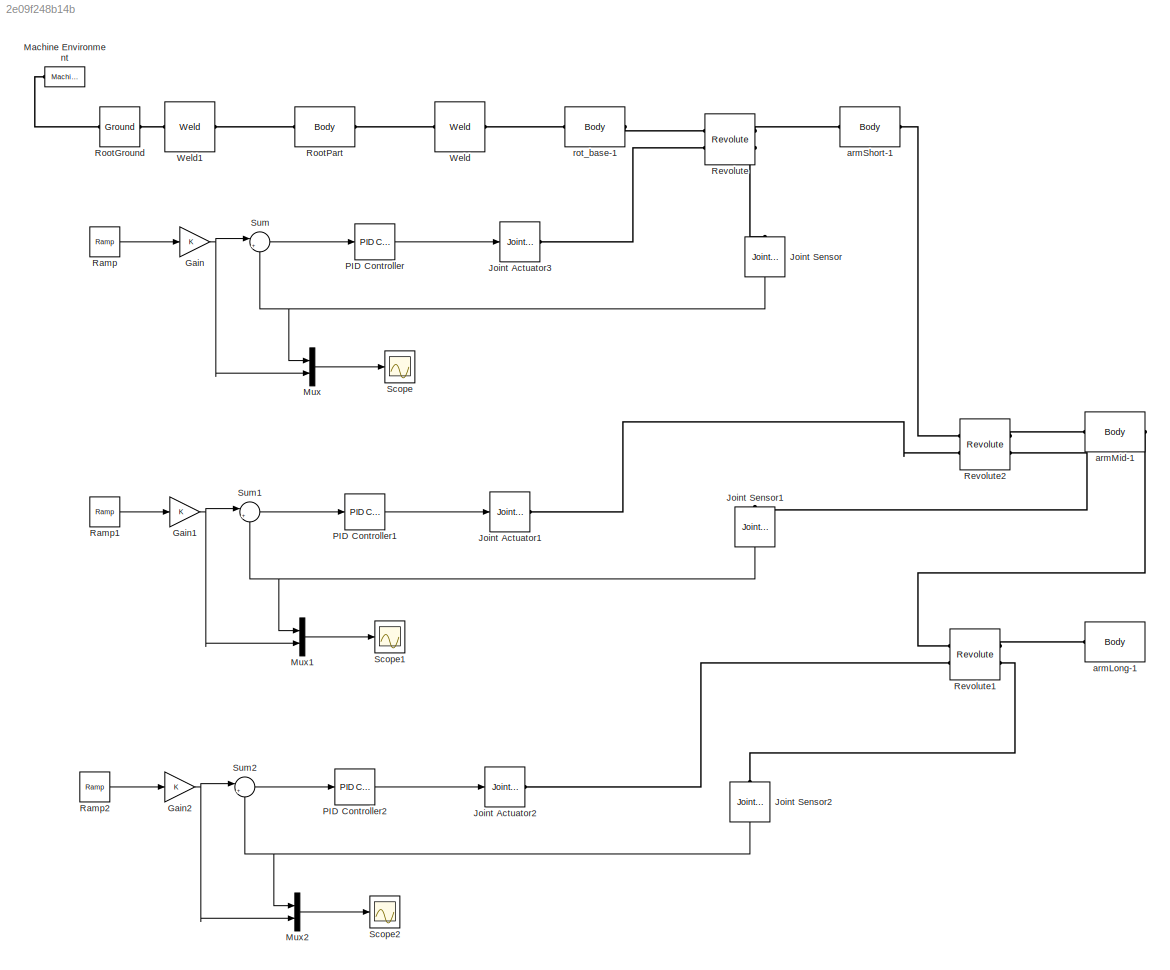
MODEL slx_2e09f248b14b
KIND model
BLOCK [Gain] Gain
  OutDataTypeStr = Inherit: Inherit via internal rule
  ParamDataTypeStr = Inherit: Inherit via internal rule
  SaturateOnIntegerOverflow = off
BLOCK [Gain] Gain1
  OutDataTypeStr = Inherit: Inherit via internal rule
  ParamDataTypeStr = Inherit: Inherit via internal rule
  SaturateOnIntegerOverflow = off
BLOCK [Gain] Gain2
  OutDataTypeStr = Inherit: Inherit via internal rule
  ParamDataTypeStr = Inherit: Inherit via internal rule
  SaturateOnIntegerOverflow = off
BLOCK [Reference] Joint Actuator1  REF=mblibv1/Sensors & 
Actuators/Joint Actuator
  AccelerationUnits = m/s^2
  ActiveIO = on
  ActuationStyle = Force
  AngleUnits = deg
  ArcAccelerationUnits = deg/s^2
  ArcVelocityUnits = deg/s
  ClassName = JointActuator
  CoordPositionUnits = m
  DialogClass = MechanicalActuatorBlock
  ForceUnits = N
  PhysicalDomain = Mechanical
  PortType = blob
  Ports = [1, 0, 0, 0, 0, 0, 1]
  Primitive = R1
  ReferenceFrame = Absolute (World)
  SourceBlock = mblibv1/Sensors & \nActuators/Joint Actuator
  SourceType = Joint Actuator
  TorqueUnits = N*m
  UpdateFromCAD = off
  VelocityUnits = m/s
  Width = 1
BLOCK [Reference] Joint Actuator2  REF=mblibv1/Sensors & 
Actuators/Joint Actuator
  AccelerationUnits = m/s^2
  ActiveIO = on
  ActuationStyle = Force
  AngleUnits = deg
  ArcAccelerationUnits = deg/s^2
  ArcVelocityUnits = deg/s
  ClassName = JointActuator
  CoordPositionUnits = m
  DialogClass = MechanicalActuatorBlock
  ForceUnits = N
  PhysicalDomain = Mechanical
  PortType = blob
  Ports = [1, 0, 0, 0, 0, 0, 1]
  Primitive = R1
  ReferenceFrame = Absolute (World)
  SourceBlock = mblibv1/Sensors & \nActuators/Joint Actuator
  SourceType = Joint Actuator
  TorqueUnits = N*m
  UpdateFromCAD = off
  VelocityUnits = m/s
  Width = 1
BLOCK [Reference] Joint Actuator3  REF=mblibv1/Sensors & 
Actuators/Joint Actuator
  AccelerationUnits = m/s^2
  ActiveIO = on
  ActuationStyle = Force
  AngleUnits = deg
  ArcAccelerationUnits = deg/s^2
  ArcVelocityUnits = deg/s
  ClassName = JointActuator
  CoordPositionUnits = m
  DialogClass = MechanicalActuatorBlock
  ForceUnits = N
  PhysicalDomain = Mechanical
  PortType = blob
  Ports = [1, 0, 0, 0, 0, 0, 1]
  Primitive = R1
  ReferenceFrame = Absolute (World)
  SourceBlock = mblibv1/Sensors & \nActuators/Joint Actuator
  SourceType = Joint Actuator
  TorqueUnits = N*m
  UpdateFromCAD = off
  VelocityUnits = m/s
  Width = 1
BLOCK [Reference] Joint Sensor  REF=mblibv1/Sensors & 
Actuators/Joint Sensor
  Acceleration = off
  AccelerationUnits = m/s^2
  ActiveIO = on
  Angle = on
  AngleUnits = deg
  ArcAcceleration = off
  ArcAccelerationUnits = deg/s^2
  ArcVelocity = off
  ArcVelocityUnits = deg/s
  ClassName = JointSensor
  CoordPosition = on
  CoordPositionUnits = m
  DialogClass = MechanicalSensorBlock
  Force = off
  ForceUnits = N
  Muxed = on
  OutputVector = [1]
  PhysicalDomain = Mechanical
  PortType = blob
  Ports = [0, 1, 0, 0, 0, 1]
  Pose = off
  Primitive = R1
  Quaternion = on
  QuaternionDDT = off
  QuaternionDT = off
  QuaternionUnits = off
  ReactionForce = off
  ReactionForceUnits = N
  ReactionMoment = off
  ReactionMomentUnits = N*m
  ReactionReferenceFrame = Absolute (World)
  ReactionSensedSide = Base
  ReferenceFrame = Absolute (World)
  SourceBlock = mblibv1/Sensors & \nActuators/Joint Sensor
  SourceType = Joint Sensor
  Torque = off
  TorqueUnits = N*m
  UpdateFromCAD = off
  Velocity = off
  VelocityUnits = m/s
  Width = 1
BLOCK [Reference] Joint Sensor1  REF=mblibv1/Sensors & 
Actuators/Joint Sensor
  Acceleration = off
  AccelerationUnits = m/s^2
  ActiveIO = on
  Angle = on
  AngleUnits = deg
  ArcAcceleration = off
  ArcAccelerationUnits = deg/s^2
  ArcVelocity = off
  ArcVelocityUnits = deg/s
  ClassName = JointSensor
  CoordPosition = on
  CoordPositionUnits = m
  DialogClass = MechanicalSensorBlock
  Force = off
  ForceUnits = N
  Muxed = on
  OutputVector = [1]
  PhysicalDomain = Mechanical
  PortType = blob
  Ports = [0, 1, 0, 0, 0, 1]
  Pose = off
  Primitive = R1
  Quaternion = on
  QuaternionDDT = off
  QuaternionDT = off
  QuaternionUnits = off
  ReactionForce = off
  ReactionForceUnits = N
  ReactionMoment = off
  ReactionMomentUnits = N*m
  ReactionReferenceFrame = Absolute (World)
  ReactionSensedSide = Base
  ReferenceFrame = Absolute (World)
  SourceBlock = mblibv1/Sensors & \nActuators/Joint Sensor
  SourceType = Joint Sensor
  Torque = off
  TorqueUnits = N*m
  UpdateFromCAD = off
  Velocity = off
  VelocityUnits = m/s
  Width = 1
BLOCK [Reference] Joint Sensor2  REF=mblibv1/Sensors & 
Actuators/Joint Sensor
  Acceleration = off
  AccelerationUnits = m/s^2
  ActiveIO = on
  Angle = on
  AngleUnits = deg
  ArcAcceleration = off
  ArcAccelerationUnits = deg/s^2
  ArcVelocity = off
  ArcVelocityUnits = deg/s
  ClassName = JointSensor
  CoordPosition = on
  CoordPositionUnits = m
  DialogClass = MechanicalSensorBlock
  Force = off
  ForceUnits = N
  Muxed = on
  OutputVector = [1]
  PhysicalDomain = Mechanical
  PortType = blob
  Ports = [0, 1, 0, 0, 0, 1]
  Pose = off
  Primitive = R1
  Quaternion = on
  QuaternionDDT = off
  QuaternionDT = off
  QuaternionUnits = off
  ReactionForce = off
  ReactionForceUnits = N
  ReactionMoment = off
  ReactionMomentUnits = N*m
  ReactionReferenceFrame = Absolute (World)
  ReactionSensedSide = Base
  ReferenceFrame = Absolute (World)
  SourceBlock = mblibv1/Sensors & \nActuators/Joint Sensor
  SourceType = Joint Sensor
  Torque = off
  TorqueUnits = N*m
  UpdateFromCAD = off
  Velocity = off
  VelocityUnits = m/s
  Width = 1
BLOCK [Reference] Machine Environment  REF=mblibv1/Bodies/Machine
Environment
  AnalysisType = Forward dynamics
  AngularAssemblyTolerance = 1e-3
  AngularAssemblyToleranceUnits = rad
  BodyColorSelMode = Use model default
  BodyVisualizationType = Use model default body geometries
  ClassName = Environment
  ConstraintAbsTolerance = 1e-4
  ConstraintRelTolerance = 1e-4
  ConstraintSolverType = Stabilizing
  DefaultBodyColor = [1 0 0]
  DialogTemplateClass = MECH.MachineEnvironment
  Dimensionality = Auto-detect
  Gravity = [0 -9.81 0]
  GravityAsSignal = off
  GravityUnits = m/s^2
  LinearAssemblyTolerance = 1e-3
  LinearAssemblyToleranceUnits = m
  PerturbationSize = 1e-5
  PhysicalDomain = Mechanical
  PortType = env
  Ports = [0, 0, 0, 0, 0, 0, 1]
  RedundancyAnalysisTolerance = 1e-14
  RedundancyAnalysisToleranceType = Automatically select tolerance
  SourceBlock = mblibv1/Bodies/Machine\nEnvironment
  SourceType = Machine Environment
  StatePerturbationType = Fixed
  SyncWhenCopied = off
  UseRobustSingularityHandling = off
  VisualizeMachine = on
BLOCK [Mux] Mux
  DisplayOption = bar
  Inputs = 2
  Ports = [2, 1]
BLOCK [Mux] Mux1
  DisplayOption = bar
  Inputs = 2
  Ports = [2, 1]
BLOCK [Mux] Mux2
  DisplayOption = bar
  Inputs = 2
  Ports = [2, 1]
BLOCK [Reference] PID Controller  REF=simulink/Continuous/PID Controller
  AntiWindupMode = none
  Controller = PID
  D = 4.58263282324642
  DOutDataTypeStr = Inherit: Inherit via internal rule
  DOutMax = []
  DOutMin = []
  DParamDataTypeStr = Inherit: Inherit via internal rule
  DParamMax = []
  DParamMin = []
  DifferentiatorICPrevScaledInput = 0
  DifferentiatorOutDataTypeStr = Inherit: Inherit via internal rule
  DifferentiatorOutMax = []
  DifferentiatorOutMin = []
  ExternalReset = none
  FilterContinuousStateAttributes = ''
  FilterMethod = Forward Euler
  FilterOutDataTypeStr = Inherit: Inherit via internal rule
  FilterOutMax = []
  FilterOutMin = []
  FilterRTWStateStorageClass = Auto
  FilterStateMustResolveToSignalObject = off
  Form = Parallel
  I = 75.5250186640571
  IOutDataTypeStr = Inherit: Inherit via internal rule
  IOutMax = []
  IOutMin = []
  IParamDataTypeStr = Inherit: Inherit via internal rule
  IParamMax = []
  IParamMin = []
  IgnoreLimit = off
  InitialConditionForFilter = 0
  InitialConditionForIntegrator = 0
  InitialConditionSource = internal
  IntegratorContinuousStateAttributes = ''
  IntegratorMethod = Forward Euler
  IntegratorOutDataTypeStr = Inherit: Inherit via internal rule
  IntegratorOutMax = []
  IntegratorOutMin = []
  IntegratorRTWStateStorageClass = Auto
  IntegratorStateMustResolveToSignalObject = off
  Kb = 1
  KbOutDataTypeStr = Inherit: Inherit via internal rule
  KbOutMax = []
  KbOutMin = []
  KbParamDataTypeStr = Inherit: Inherit via internal rule
  KbParamMax = []
  KbParamMin = []
  Kt = 1
  KtOutDataTypeStr = Inherit: Inherit via internal rule
  KtOutMax = []
  KtOutMin = []
  KtParamDataTypeStr = Inherit: Inherit via internal rule
  KtParamMax = []
  KtParamMin = []
  LimitOutput = off
  LinearizeAsGain = on
  LockScale = off
  LowerSaturationLimit = -inf
  N = 6677.79407872841
  NOutDataTypeStr = Inherit: Inherit via internal rule
  NOutMax = []
  NOutMin = []
  NParamDataTypeStr = Inherit: Inherit via internal rule
  NParamMax = []
  NParamMin = []
  P = 150.056536397239
  POutDataTypeStr = Inherit: Inherit via internal rule
  POutMax = []
  POutMin = []
  PParamDataTypeStr = Inherit: Inherit via internal rule
  PParamMax = []
  PParamMin = []
  Ports = [1, 1]
  RndMeth = Floor
  SampleTime = -1
  SaturateOnIntegerOverflow = off
  SaturationOutDataTypeStr = Inherit: Same as input
  SaturationOutMax = []
  SaturationOutMin = []
  SourceBlock = simulink/Continuous/PID Controller
  SourceType = PID 1dof
  SumAccumDataTypeStr = Inherit: Inherit via internal rule
  SumDAccumDataTypeStr = Inherit: Inherit via internal rule
  SumDOutDataTypeStr = Inherit: Inherit via internal rule
  SumDOutMax = []
  SumDOutMin = []
  SumI1AccumDataTypeStr = Inherit: Inherit via internal rule
  SumI1OutDataTypeStr = Inherit: Inherit via internal rule
  SumI1OutMax = []
  SumI1OutMin = []
  SumI2AccumDataTypeStr = Inherit: Inherit via internal rule
  SumI2OutDataTypeStr = Inherit: Inherit via internal rule
  SumI2OutMax = []
  SumI2OutMin = []
  SumI3AccumDataTypeStr = Inherit: Inherit via internal rule
  SumI3OutDataTypeStr = Inherit: Inherit via internal rule
  SumI3OutMax = []
  SumI3OutMin = []
  SumOutDataTypeStr = Inherit: Inherit via internal rule
  SumOutMax = []
  SumOutMin = []
  TimeDomain = Continuous-time
  TrackingMode = off
  UpperSaturationLimit = inf
  UseFilter = on
  ZeroCross = on
BLOCK [Reference] PID Controller1  REF=simulink/Continuous/PID Controller
  AntiWindupMode = none
  Controller = PID
  D = 0
  DOutDataTypeStr = Inherit: Inherit via internal rule
  DOutMax = []
  DOutMin = []
  DParamDataTypeStr = Inherit: Inherit via internal rule
  DParamMax = []
  DParamMin = []
  DifferentiatorICPrevScaledInput = 0
  DifferentiatorOutDataTypeStr = Inherit: Inherit via internal rule
  DifferentiatorOutMax = []
  DifferentiatorOutMin = []
  ExternalReset = none
  FilterContinuousStateAttributes = ''
  FilterMethod = Forward Euler
  FilterOutDataTypeStr = Inherit: Inherit via internal rule
  FilterOutMax = []
  FilterOutMin = []
  FilterRTWStateStorageClass = Auto
  FilterStateMustResolveToSignalObject = off
  Form = Parallel
  I = 317.684494192257
  IOutDataTypeStr = Inherit: Inherit via internal rule
  IOutMax = []
  IOutMin = []
  IParamDataTypeStr = Inherit: Inherit via internal rule
  IParamMax = []
  IParamMin = []
  IgnoreLimit = off
  InitialConditionForFilter = 0
  InitialConditionForIntegrator = 0
  InitialConditionSource = internal
  IntegratorContinuousStateAttributes = ''
  IntegratorMethod = Forward Euler
  IntegratorOutDataTypeStr = Inherit: Inherit via internal rule
  IntegratorOutMax = []
  IntegratorOutMin = []
  IntegratorRTWStateStorageClass = Auto
  IntegratorStateMustResolveToSignalObject = off
  Kb = 1
  KbOutDataTypeStr = Inherit: Inherit via internal rule
  KbOutMax = []
  KbOutMin = []
  KbParamDataTypeStr = Inherit: Inherit via internal rule
  KbParamMax = []
  KbParamMin = []
  Kt = 1
  KtOutDataTypeStr = Inherit: Inherit via internal rule
  KtOutMax = []
  KtOutMin = []
  KtParamDataTypeStr = Inherit: Inherit via internal rule
  KtParamMax = []
  KtParamMin = []
  LimitOutput = off
  LinearizeAsGain = on
  LockScale = off
  LowerSaturationLimit = -inf
  N = 146.896368307369
  NOutDataTypeStr = Inherit: Inherit via internal rule
  NOutMax = []
  NOutMin = []
  NParamDataTypeStr = Inherit: Inherit via internal rule
  NParamMax = []
  NParamMin = []
  P = 246.281051905246
  POutDataTypeStr = Inherit: Inherit via internal rule
  POutMax = []
  POutMin = []
  PParamDataTypeStr = Inherit: Inherit via internal rule
  PParamMax = []
  PParamMin = []
  Ports = [1, 1]
  RndMeth = Floor
  SampleTime = -1
  SaturateOnIntegerOverflow = off
  SaturationOutDataTypeStr = Inherit: Same as input
  SaturationOutMax = []
  SaturationOutMin = []
  SourceBlock = simulink/Continuous/PID Controller
  SourceType = PID 1dof
  SumAccumDataTypeStr = Inherit: Inherit via internal rule
  SumDAccumDataTypeStr = Inherit: Inherit via internal rule
  SumDOutDataTypeStr = Inherit: Inherit via internal rule
  SumDOutMax = []
  SumDOutMin = []
  SumI1AccumDataTypeStr = Inherit: Inherit via internal rule
  SumI1OutDataTypeStr = Inherit: Inherit via internal rule
  SumI1OutMax = []
  SumI1OutMin = []
  SumI2AccumDataTypeStr = Inherit: Inherit via internal rule
  SumI2OutDataTypeStr = Inherit: Inherit via internal rule
  SumI2OutMax = []
  SumI2OutMin = []
  SumI3AccumDataTypeStr = Inherit: Inherit via internal rule
  SumI3OutDataTypeStr = Inherit: Inherit via internal rule
  SumI3OutMax = []
  SumI3OutMin = []
  SumOutDataTypeStr = Inherit: Inherit via internal rule
  SumOutMax = []
  SumOutMin = []
  TimeDomain = Continuous-time
  TrackingMode = off
  UpperSaturationLimit = inf
  UseFilter = on
  ZeroCross = on
BLOCK [Reference] PID Controller2  REF=simulink/Continuous/PID Controller
  AntiWindupMode = none
  Controller = PID
  D = 0.933836484922375
  DOutDataTypeStr = Inherit: Inherit via internal rule
  DOutMax = []
  DOutMin = []
  DParamDataTypeStr = Inherit: Inherit via internal rule
  DParamMax = []
  DParamMin = []
  DifferentiatorICPrevScaledInput = 0
  DifferentiatorOutDataTypeStr = Inherit: Inherit via internal rule
  DifferentiatorOutMax = []
  DifferentiatorOutMin = []
  ExternalReset = none
  FilterContinuousStateAttributes = ''
  FilterMethod = Forward Euler
  FilterOutDataTypeStr = Inherit: Inherit via internal rule
  FilterOutMax = []
  FilterOutMin = []
  FilterRTWStateStorageClass = Auto
  FilterStateMustResolveToSignalObject = off
  Form = Parallel
  I = 1353.80517771382
  IOutDataTypeStr = Inherit: Inherit via internal rule
  IOutMax = []
  IOutMin = []
  IParamDataTypeStr = Inherit: Inherit via internal rule
  IParamMax = []
  IParamMin = []
  IgnoreLimit = off
  InitialConditionForFilter = 0
  InitialConditionForIntegrator = 0
  InitialConditionSource = internal
  IntegratorContinuousStateAttributes = ''
  IntegratorMethod = Forward Euler
  IntegratorOutDataTypeStr = Inherit: Inherit via internal rule
  IntegratorOutMax = []
  IntegratorOutMin = []
  IntegratorRTWStateStorageClass = Auto
  IntegratorStateMustResolveToSignalObject = off
  Kb = 1
  KbOutDataTypeStr = Inherit: Inherit via internal rule
  KbOutMax = []
  KbOutMin = []
  KbParamDataTypeStr = Inherit: Inherit via internal rule
  KbParamMax = []
  KbParamMin = []
  Kt = 1
  KtOutDataTypeStr = Inherit: Inherit via internal rule
  KtOutMax = []
  KtOutMin = []
  KtParamDataTypeStr = Inherit: Inherit via internal rule
  KtParamMax = []
  KtParamMin = []
  LimitOutput = off
  LinearizeAsGain = on
  LockScale = off
  LowerSaturationLimit = -inf
  N = 858.708033042236
  NOutDataTypeStr = Inherit: Inherit via internal rule
  NOutMax = []
  NOutMin = []
  NParamDataTypeStr = Inherit: Inherit via internal rule
  NParamMax = []
  NParamMin = []
  P = 261.216911861667
  POutDataTypeStr = Inherit: Inherit via internal rule
  POutMax = []
  POutMin = []
  PParamDataTypeStr = Inherit: Inherit via internal rule
  PParamMax = []
  PParamMin = []
  Ports = [1, 1]
  RndMeth = Floor
  SampleTime = -1
  SaturateOnIntegerOverflow = off
  SaturationOutDataTypeStr = Inherit: Same as input
  SaturationOutMax = []
  SaturationOutMin = []
  SourceBlock = simulink/Continuous/PID Controller
  SourceType = PID 1dof
  SumAccumDataTypeStr = Inherit: Inherit via internal rule
  SumDAccumDataTypeStr = Inherit: Inherit via internal rule
  SumDOutDataTypeStr = Inherit: Inherit via internal rule
  SumDOutMax = []
  SumDOutMin = []
  SumI1AccumDataTypeStr = Inherit: Inherit via internal rule
  SumI1OutDataTypeStr = Inherit: Inherit via internal rule
  SumI1OutMax = []
  SumI1OutMin = []
  SumI2AccumDataTypeStr = Inherit: Inherit via internal rule
  SumI2OutDataTypeStr = Inherit: Inherit via internal rule
  SumI2OutMax = []
  SumI2OutMin = []
  SumI3AccumDataTypeStr = Inherit: Inherit via internal rule
  SumI3OutDataTypeStr = Inherit: Inherit via internal rule
  SumI3OutMax = []
  SumI3OutMin = []
  SumOutDataTypeStr = Inherit: Inherit via internal rule
  SumOutMax = []
  SumOutMin = []
  TimeDomain = Continuous-time
  TrackingMode = off
  UpperSaturationLimit = inf
  UseFilter = on
  ZeroCross = on
BLOCK [Reference] Ramp  REF=simulink/Sources/Ramp
  Ports = [0, 1]
  SourceBlock = simulink/Sources/Ramp
  SourceType = Ramp
  VectorParams1D = on
  X0 = 0
  slope = 10
  start = 0
BLOCK [Reference] Ramp1  REF=simulink/Sources/Ramp
  Ports = [0, 1]
  SourceBlock = simulink/Sources/Ramp
  SourceType = Ramp
  VectorParams1D = on
  X0 = 0
  slope = 10
  start = 0
BLOCK [Reference] Ramp2  REF=simulink/Sources/Ramp
  Ports = [0, 1]
  SourceBlock = simulink/Sources/Ramp
  SourceType = Ramp
  VectorParams1D = on
  X0 = 0
  slope = 10
  start = 0
BLOCK [Reference] Revolute  REF=mblibv1/Joints/Revolute
  ClassName = Joint
  CutJoint = off
  DialogClass = JointBlock
  LConnTagsString = __newl0|SA1
  MarkAsCut = off
  NumSAPorts = 2
  PMImportedID = armShort-1:-:rot_base-1
  Ports = [0, 0, 0, 0, 0, 2, 2]
  PrimitiveProps = R1$World$[0,0,-1]$revolute
  Primitives = prismatic
  R1Axis = [0,0,-1]
  RConnTagsString = __newr0|SA1
  SourceBlock = mblibv1/Joints/Revolute
  SourceType = Revolute
  UpdateFromCAD = on
BLOCK [Reference] Revolute1  REF=mblibv1/Joints/Revolute
  ClassName = Joint
  CutJoint = off
  DialogClass = JointBlock
  LConnTagsString = __newl0|SA1
  MarkAsCut = off
  NumSAPorts = 2
  PMImportedID = armLong-1:-:armMid-1
  Ports = [0, 0, 0, 0, 0, 2, 2]
  PrimitiveProps = R1$World$[0,0,-1]$revolute
  Primitives = prismatic
  R1Axis = [0,0,-1]
  RConnTagsString = __newr0|SA1
  SourceBlock = mblibv1/Joints/Revolute
  SourceType = Revolute
  UpdateFromCAD = on
BLOCK [Reference] Revolute2  REF=mblibv1/Joints/Revolute
  ClassName = Joint
  CutJoint = off
  DialogClass = JointBlock
  LConnTagsString = __newl0|SA1
  MarkAsCut = off
  NumSAPorts = 2
  PMImportedID = armMid-1:-:armShort-1
  Ports = [0, 0, 0, 0, 0, 2, 2]
  PrimitiveProps = R1$World$[0,0,-1]$revolute
  Primitives = prismatic
  R1Axis = [0,0,-1]
  RConnTagsString = __newr0|SA1
  SourceBlock = mblibv1/Joints/Revolute
  SourceType = Revolute
  UpdateFromCAD = on
BLOCK [Reference] RootGround  REF=mblibv1/Bodies/Ground
  ClassName = Ground
  CoordPosition = [0.153307,0.281666,0.176178]
  CoordPositionUnits = m
  DialogClass = GroundBlock
  LeftPortType = env
  MachineId = [2 0]
  PMImportedID = RootGround
  ParameterChecksum = [473856854, 3970638609, 3889129700, 2497337139]
  PhysicalDomain = Mechanical
  Ports = [0, 0, 0, 0, 0, 1, 1]
  RightPortType = workingframe
  ShowEnvPort = on
  SourceBlock = mblibv1/Bodies/Ground
  SourceType = Ground
  StateVectorMgrId = 1
  TopologyChecksum = [4269708570, 4051388403, 3516390922, 4097129223]
  UpdateFromCAD = on
  UserDataPersistent = on
BLOCK [Reference] RootPart  REF=mblibv1/Bodies/Body
  AttachedToCS = CS1
  BodyColor = [1;0;0]
  BodyColorSelMode = MACHINE_DEFAULT
  CG = Right$CG$[0.153307 0.281666 0.176178]$WORLD$WORLD$m$[1 0 0;0 1 0;0 0 1]$3x3 Transform$rad$WORLD$false$3ArmRobot/RootPart::CG(AUTOGEN)
  CGPos = [0.153307 0.281666 0.176178]
  CGRot = [1 0 0;0 1 0;0 0 1]
  CS0Pos = []
  CS0Rot = []
  CS10Pos = []
  CS10Rot = []
  CS11Pos = []
  CS11Rot = []
  CS12Pos = []
  CS12Rot = []
  CS13Pos = []
  CS13Rot = []
  CS14Pos = []
  CS14Rot = []
  CS15Pos = []
  CS15Rot = []
  CS16Pos = []
  CS16Rot = []
  CS17Pos = []
  CS17Rot = []
  CS18Pos = []
  CS18Rot = []
  CS19Pos = []
  CS19Rot = []
  CS1Pos = [0 0 0]
  CS1Rot = [1 0 0;0 1 0;0 0 1]
  CS20Pos = []
  CS20Rot = []
  CS2Pos = [0.00392721 -0.0056827 0.2]
  CS2Rot = [1 0 0;0 1 0;0 0 1]
  CS3Pos = [0.153307 0.281666 0.176178]
  CS3Rot = [1 0 0;0 1 0;0 0 1]
  CS4Pos = []
  CS4Rot = []
  CS5Pos = []
  CS5Rot = []
  CS6Pos = []
  CS6Rot = []
  CS7Pos = []
  CS7Rot = []
  CS8Pos = []
  CS8Rot = []
  CS9Pos = []
  CS9Rot = []
  ClassName = Body
  Density = 1
  DensityUnits = kg/m^3
  DensityUse = false
  DialogClass = MechanicalBodyBlock
  GraphicsMode = MACHINE_DEFAULT
  Inertia = [0,0,0;0,0,0;0,0,0]
  InertiaUnits = kg*m^2
  LConnTagsString = CS3
  Mass = 0
  MassUnits = kg
  PMImportedID = 3ArmRobot/RootPart
  Ports = [0, 0, 0, 0, 0, 1, 1]
  RConnTagsString = CS2
  Shape = Cylinder
  ShapeDims = [1 1]
  ShapeUnits = m
  ShapeUse = false
  SourceBlock = mblibv1/Bodies/Body
  SourceType = Body
  UpdateFromCAD = on
  WorkingFrames = Right$CS1$[0 0 0]$WORLD$WORLD$m$[1 0 0;0 1 0;0 0 1]$3x3 Transform$rad$WORLD$false$3ArmRobot/RootPart::CS1(AUTOGEN)#Right$CS2$[0.00392721 -0.0056827 0.2]$WORLD$WORLD$m$[1 0 0;0 1 0;0 0 1]$3x3 Transform$rad$WORLD$true$3ArmRobot/RootPart:-:rot_base-1::3ArmRobot/RootPart(AUTOGEN)#Left$CS3$[0.153307 0.281666 0.176178]$WORLD$WORLD$m$[1 0 0;0 1 0;0 0 1]$3x3 Transform$rad$WORLD$true$3ArmRobot/RootPart:-:R...<+38ch>
BLOCK [Scope] Scope
  Floating = off
  NumInputPorts = 1
  Ports = [1]
  ShowLegends = off
  YMax = 10
  YMin = -0.0039075
BLOCK [Scope] Scope1
  Floating = off
  NumInputPorts = 1
  Ports = [1]
  SaveName = ScopeData1
  ShowLegends = off
  YMax = 10
  YMin = 0
BLOCK [Scope] Scope2
  Floating = off
  NumInputPorts = 1
  Ports = [1]
  SaveName = ScopeData2
  ShowLegends = off
  YMax = 10
  YMin = -0.00180135
BLOCK [Sum] Sum
  IconShape = round
  InputSameDT = off
  Inputs = |+-
  OutDataTypeStr = Inherit: Inherit via internal rule
  Ports = [2, 1]
  SaturateOnIntegerOverflow = off
BLOCK [Sum] Sum1
  IconShape = round
  InputSameDT = off
  Inputs = |+-
  OutDataTypeStr = Inherit: Inherit via internal rule
  Ports = [2, 1]
  SaturateOnIntegerOverflow = off
BLOCK [Sum] Sum2
  IconShape = round
  InputSameDT = off
  Inputs = |+-
  OutDataTypeStr = Inherit: Inherit via internal rule
  Ports = [2, 1]
  SaturateOnIntegerOverflow = off
BLOCK [Reference] Weld  REF=mblibv1/Joints/Weld
  ClassName = Joint
  CutJoint = off
  DialogClass = JointBlock
  LConnTagsString = __newl0
  MarkAsCut = off
  NumSAPorts = 0
  PMImportedID = 3ArmRobot/RootPart:-:rot_base-1
  Ports = [0, 0, 0, 0, 0, 1, 1]
  PrimitiveProps = W$WORLD$[0.57735,0.57735,0.57735]$weld
  Primitives = weld
  RConnTagsString = __newr0
  SourceBlock = mblibv1/Joints/Weld
  SourceType = Weld
  UpdateFromCAD = on
  WAxis = [0.57735,0.57735,0.57735]
BLOCK [Reference] Weld1  REF=mblibv1/Joints/Weld
  ClassName = Joint
  CutJoint = off
  DialogClass = JointBlock
  LConnTagsString = __newl0
  MarkAsCut = off
  NumSAPorts = 0
  PMImportedID = 3ArmRobot/RootPart:-:RootGround
  Ports = [0, 0, 0, 0, 0, 1, 1]
  PrimitiveProps = W$WORLD$[0.57735,0.57735,0.57735]$weld
  Primitives = weld
  RConnTagsString = __newr0
  SourceBlock = mblibv1/Joints/Weld
  SourceType = Weld
  UpdateFromCAD = on
  WAxis = [0.57735,0.57735,0.57735]
BLOCK [Reference] armLong-1  REF=mblibv1/Bodies/Body
  AttachedToCS = CS1
  BodyColor = [0.89412 0.91373 0.92941]
  BodyColorSelMode = COLORPALETTE
  CG = Right$CG$[0.408176 0.506581 0.151971]$WORLD$WORLD$m$[0 1 0;-1 0 0;0 0 1]$3x3 Transform$rad$WORLD$false$armLong-1::CG(AUTOGEN)
  CGPos = [0.408176 0.506581 0.151971]
  CGRot = [0 1 0;-1 0 0;0 0 1]
  CS0Pos = []
  CS0Rot = []
  CS10Pos = []
  CS10Rot = []
  CS11Pos = []
  CS11Rot = []
  CS12Pos = []
  CS12Rot = []
  CS13Pos = []
  CS13Rot = []
  CS14Pos = []
  CS14Rot = []
  CS15Pos = []
  CS15Rot = []
  CS16Pos = []
  CS16Rot = []
  CS17Pos = []
  CS17Rot = []
  CS18Pos = []
  CS18Rot = []
  CS19Pos = []
  CS19Rot = []
  CS1Pos = [0.416059 0.506581 0.15]
  CS1Rot = [0 1 0;-1 0 0;0 0 1]
  CS20Pos = []
  CS20Rot = []
  CS2Pos = [0.216059 0.506581 0.225]
  CS2Rot = [1 0 0;0 1 0;0 0 1]
  CS3Pos = []
  CS3Rot = []
  CS4Pos = []
  CS4Rot = []
  CS5Pos = []
  CS5Rot = []
  CS6Pos = []
  CS6Rot = []
  CS7Pos = []
  CS7Rot = []
  CS8Pos = []
  CS8Rot = []
  CS9Pos = []
  CS9Rot = []
  ClassName = Body
  Density = 1
  DensityUnits = kg/m^3
  DensityUse = false
  DialogClass = MechanicalBodyBlock
  GraphicsFileName = <userpath>\Dropbox\502\0413_Simulink\3ArmRobot - armLong-1.STL
  GraphicsMode = GFXFILE
  Inertia = [0.136338,0,0;0,0.00724177,0.00254624;0,0.00254624,0.139505]
  InertiaUnits = kg*m^2
  LConnTagsString = CS2
  Mass = 6.72536
  MassUnits = kg
  PMImportedID = armLong-1
  Ports = [0, 0, 0, 0, 0, 1]
  Shape = Cylinder
  ShapeDims = [1 1]
  ShapeUnits = m
  ShapeUse = false
  SourceBlock = mblibv1/Bodies/Body
  SourceType = Body
  UpdateFromCAD = on
  WorkingFrames = Right$CS1$[0.416059 0.506581 0.15]$WORLD$WORLD$m$[0 1 0;-1 0 0;0 0 1]$3x3 Transform$rad$WORLD$false$armLong-1::CS1(AUTOGEN)#Left$CS2$[0.216059 0.506581 0.225]$WORLD$WORLD$m$[1 0 0;0 1 0;0 0 1]$3x3 Transform$rad$WORLD$true$armLong-1:-:armMid-1::armLong-1(AUTOGEN)
BLOCK [Reference] armMid-1  REF=mblibv1/Bodies/Body
  AttachedToCS = CS1
  BodyColor = [0.89412 0.91373 0.92941]
  BodyColorSelMode = COLORPALETTE
  CG = Right$CG$[0.0989899 0.389512 0.197406]$WORLD$WORLD$m$[-0.707107 0.707107 0;0.707107 0.707107 0;0 0 -1]$3x3 Transform$rad$WORLD$false$armMid-1::CG(AUTOGEN)
  CGPos = [0.0989899 0.389512 0.197406]
  CGRot = [-0.707107 0.707107 0;0.707107 0.707107 0;0 0 -1]
  CS0Pos = []
  CS0Rot = []
  CS10Pos = []
  CS10Rot = []
  CS11Pos = []
  CS11Rot = []
  CS12Pos = []
  CS12Rot = []
  CS13Pos = []
  CS13Rot = []
  CS14Pos = []
  CS14Rot = []
  CS15Pos = []
  CS15Rot = []
  CS16Pos = []
  CS16Rot = []
  CS17Pos = []
  CS17Rot = []
  CS18Pos = []
  CS18Rot = []
  CS19Pos = []
  CS19Rot = []
  CS1Pos = [0.109993 0.400515 0.2]
  CS1Rot = [-0.707107 0.707107 0;0.707107 0.707107 0;0 0 -1]
  CS20Pos = []
  CS20Rot = []
  CS2Pos = [0.216059 0.506581 0.225]
  CS2Rot = [1 0 0;0 1 0;0 0 1]
  CS3Pos = [0.00392721 0.294449 0.125]
  CS3Rot = [1 0 0;0 1 0;0 0 1]
  CS4Pos = []
  CS4Rot = []
  CS5Pos = []
  CS5Rot = []
  CS6Pos = []
  CS6Rot = []
  CS7Pos = []
  CS7Rot = []
  CS8Pos = []
  CS8Rot = []
  CS9Pos = []
  CS9Rot = []
  ClassName = Body
  Density = 1
  DensityUnits = kg/m^3
  DensityUse = false
  DialogClass = MechanicalBodyBlock
  GraphicsFileName = <userpath>\Dropbox\502\0413_Simulink\3ArmRobot - armMid-1.STL
  GraphicsMode = GFXFILE
  Inertia = [0.0620997,0,0;0,0.00573063,0.0017818;0,0.0017818,0.0644444]
  InertiaUnits = kg*m^2
  LConnTagsString = CS3
  Mass = 5.11029
  MassUnits = kg
  PMImportedID = armMid-1
  Ports = [0, 0, 0, 0, 0, 1, 1]
  RConnTagsString = CS2
  Shape = Cylinder
  ShapeDims = [1 1]
  ShapeUnits = m
  ShapeUse = false
  SourceBlock = mblibv1/Bodies/Body
  SourceType = Body
  UpdateFromCAD = on
  WorkingFrames = Right$CS1$[0.109993 0.400515 0.2]$WORLD$WORLD$m$[-0.707107 0.707107 0;0.707107 0.707107 0;0 0 -1]$3x3 Transform$rad$WORLD$false$armMid-1::CS1(AUTOGEN)#Right$CS2$[0.216059 0.506581 0.225]$WORLD$WORLD$m$[1 0 0;0 1 0;0 0 1]$3x3 Transform$rad$WORLD$true$armLong-1:-:armMid-1::armMid-1(AUTOGEN)#Left$CS3$[0.00392721 0.294449 0.125]$WORLD$WORLD$m$[1 0 0;0 1 0;0 0 1]$3x3 Transform$rad$WORLD$true$armMid-1:-...<+30ch>
BLOCK [Reference] armShort-1  REF=mblibv1/Bodies/Body
  AttachedToCS = CS1
  BodyColor = [0.89412 0.91373 0.92941]
  BodyColorSelMode = COLORPALETTE
  CG = Right$CG$[0.00392721 0.180351 0.153525]$WORLD$WORLD$m$[1 0 0;0 1 0;0 0 1]$3x3 Transform$rad$WORLD$false$armShort-1::CG(AUTOGEN)
  CGPos = [0.00392721 0.180351 0.153525]
  CGRot = [1 0 0;0 1 0;0 0 1]
  CS0Pos = []
  CS0Rot = []
  CS10Pos = []
  CS10Rot = []
  CS11Pos = []
  CS11Rot = []
  CS12Pos = []
  CS12Rot = []
  CS13Pos = []
  CS13Rot = []
  CS14Pos = []
  CS14Rot = []
  CS15Pos = []
  CS15Rot = []
  CS16Pos = []
  CS16Rot = []
  CS17Pos = []
  CS17Rot = []
  CS18Pos = []
  CS18Rot = []
  CS19Pos = []
  CS19Rot = []
  CS1Pos = [0.00392721 0.194449 0.15]
  CS1Rot = [1 0 0;0 1 0;0 0 1]
  CS20Pos = []
  CS20Rot = []
  CS2Pos = [0.00392721 0.094449 0.225]
  CS2Rot = [1 0 0;0 1 0;0 0 1]
  CS3Pos = [0.00392721 0.294449 0.125]
  CS3Rot = [1 0 0;0 1 0;0 0 1]
  CS4Pos = []
  CS4Rot = []
  CS5Pos = []
  CS5Rot = []
  CS6Pos = []
  CS6Rot = []
  CS7Pos = []
  CS7Rot = []
  CS8Pos = []
  CS8Rot = []
  CS9Pos = []
  CS9Rot = []
  ClassName = Body
  Density = 1
  DensityUnits = kg/m^3
  DensityUse = false
  DialogClass = MechanicalBodyBlock
  GraphicsFileName = <userpath>\Dropbox\502\0413_Simulink\3ArmRobot - armShort-1.STL
  GraphicsMode = GFXFILE
  Inertia = [0.0254175,0,0;0,0.00431204,0.0011385;0,0.0011385,0.0269308]
  InertiaUnits = kg*m^2
  LConnTagsString = CS2
  Mass = 3.76029
  MassUnits = kg
  PMImportedID = armShort-1
  Ports = [0, 0, 0, 0, 0, 1, 1]
  RConnTagsString = CS3
  Shape = Cylinder
  ShapeDims = [1 1]
  ShapeUnits = m
  ShapeUse = false
  SourceBlock = mblibv1/Bodies/Body
  SourceType = Body
  UpdateFromCAD = on
  WorkingFrames = Right$CS1$[0.00392721 0.194449 0.15]$WORLD$WORLD$m$[1 0 0;0 1 0;0 0 1]$3x3 Transform$rad$WORLD$false$armShort-1::CS1(AUTOGEN)#Left$CS2$[0.00392721 0.094449 0.225]$WORLD$WORLD$m$[1 0 0;0 1 0;0 0 1]$3x3 Transform$rad$WORLD$true$armShort-1:-:rot_base-1::armShort-1(AUTOGEN)#Right$CS3$[0.00392721 0.294449 0.125]$WORLD$WORLD$m$[1 0 0;0 1 0;0 0 1]$3x3 Transform$rad$WORLD$true$armMid-1:-:armShort-1::armSh...<+14ch>
BLOCK [Reference] rot_base-1  REF=mblibv1/Bodies/Body
  AttachedToCS = CS1
  BodyColor = [0.89412 0.91373 0.92941]
  BodyColorSelMode = COLORPALETTE
  CG = Right$CG$[0.00392721 -0.0056827 0.2]$WORLD$WORLD$m$[1 0 0;0 1 0;0 0 1]$3x3 Transform$rad$WORLD$false$rot_base-1::CG(AUTOGEN)
  CGPos = [0.00392721 -0.0056827 0.2]
  CGRot = [1 0 0;0 1 0;0 0 1]
  CS0Pos = []
  CS0Rot = []
  CS10Pos = []
  CS10Rot = []
  CS11Pos = []
  CS11Rot = []
  CS12Pos = []
  CS12Rot = []
  CS13Pos = []
  CS13Rot = []
  CS14Pos = []
  CS14Rot = []
  CS15Pos = []
  CS15Rot = []
  CS16Pos = []
  CS16Rot = []
  CS17Pos = []
  CS17Rot = []
  CS18Pos = []
  CS18Rot = []
  CS19Pos = []
  CS19Rot = []
  CS1Pos = [0.00392721 -0.055551 0.2]
  CS1Rot = [1 0 0;0 1 0;0 0 1]
  CS20Pos = []
  CS20Rot = []
  CS2Pos = [0.00392721 -0.0056827 0.2]
  CS2Rot = [1 0 0;0 1 0;0 0 1]
  CS3Pos = [0.00392721 0.094449 0.225]
  CS3Rot = [1 0 0;0 1 0;0 0 1]
  CS4Pos = []
  CS4Rot = []
  CS5Pos = []
  CS5Rot = []
  CS6Pos = []
  CS6Rot = []
  CS7Pos = []
  CS7Rot = []
  CS8Pos = []
  CS8Rot = []
  CS9Pos = []
  CS9Rot = []
  ClassName = Body
  Density = 1
  DensityUnits = kg/m^3
  DensityUse = false
  DialogClass = MechanicalBodyBlock
  GraphicsFileName = <userpath>\Dropbox\502\0413_Simulink\3ArmRobot - rot_base-1.STL
  GraphicsMode = GFXFILE
  Inertia = [0.0241642,0,0;0,0.0229571,0;0,0,0.0252426]
  InertiaUnits = kg*m^2
  LConnTagsString = CS2
  Mass = 5.85622
  MassUnits = kg
  PMImportedID = rot_base-1
  Ports = [0, 0, 0, 0, 0, 1, 1]
  RConnTagsString = CS3
  Shape = Cylinder
  ShapeDims = [1 1]
  ShapeUnits = m
  ShapeUse = false
  SourceBlock = mblibv1/Bodies/Body
  SourceType = Body
  UpdateFromCAD = on
  WorkingFrames = Right$CS1$[0.00392721 -0.055551 0.2]$WORLD$WORLD$m$[1 0 0;0 1 0;0 0 1]$3x3 Transform$rad$WORLD$false$rot_base-1::CS1(AUTOGEN)#Left$CS2$[0.00392721 -0.0056827 0.2]$WORLD$WORLD$m$[1 0 0;0 1 0;0 0 1]$3x3 Transform$rad$WORLD$true$3ArmRobot/RootPart:-:rot_base-1::rot_base-1(AUTOGEN)#Right$CS3$[0.00392721 0.094449 0.225]$WORLD$WORLD$m$[1 0 0;0 1 0;0 0 1]$3x3 Transform$rad$WORLD$true$armShort-1:-:rot_bas...<+24ch>
NET Gain1:1 -> Mux1:2, Sum1:1
NET Gain2:1 -> Mux2:2, Sum2:1
NET Gain:1 -> Mux:2, Sum:1
NET Joint Sensor1:1 -> Mux1:1, Sum1:2
NET Joint Sensor2:1 -> Mux2:1, Sum2:2
NET Joint Sensor:1 -> Mux:1, Sum:2
LINE Mux1:1 -> Scope1:1
LINE Mux2:1 -> Scope2:1
LINE Mux:1 -> Scope:1
LINE PID Controller1:1 -> Joint Actuator1:1
LINE PID Controller2:1 -> Joint Actuator2:1
LINE PID Controller:1 -> Joint Actuator3:1
LINE Ramp1:1 -> Gain1:1
LINE Ramp2:1 -> Gain2:1
LINE Ramp:1 -> Gain:1
LINE Sum1:1 -> PID Controller1:1
LINE Sum2:1 -> PID Controller2:1
LINE Sum:1 -> PID Controller:1
PLINE Joint Actuator1:RConn1 -- Revolute2:LConn2
PLINE Joint Actuator2:RConn1 -- Revolute1:LConn2
PLINE Joint Actuator3:RConn1 -- Revolute:LConn2
PLINE Joint Sensor1:LConn1 -- Revolute2:RConn2
PLINE Joint Sensor2:LConn1 -- Revolute1:RConn2
PLINE Joint Sensor:LConn1 -- Revolute:RConn2
PLINE Machine Environment:RConn1 -- RootGround:LConn1
PLINE Revolute1:LConn1 -- armMid-1:RConn1
PLINE Revolute1:RConn1 -- armLong-1:LConn1
PLINE Revolute2:LConn1 -- armShort-1:RConn1
PLINE Revolute2:RConn1 -- armMid-1:LConn1
PLINE Revolute:LConn1 -- rot_base-1:RConn1
PLINE Revolute:RConn1 -- armShort-1:LConn1
PLINE RootGround:RConn1 -- Weld1:LConn1
PLINE RootPart:LConn1 -- Weld1:RConn1
PLINE RootPart:RConn1 -- Weld:LConn1
PLINE Weld:RConn1 -- rot_base-1:LConn1
note: NET lines group one-source signal fan-out (src -> all destinations, sorted); 1:1 wires keep LINE
